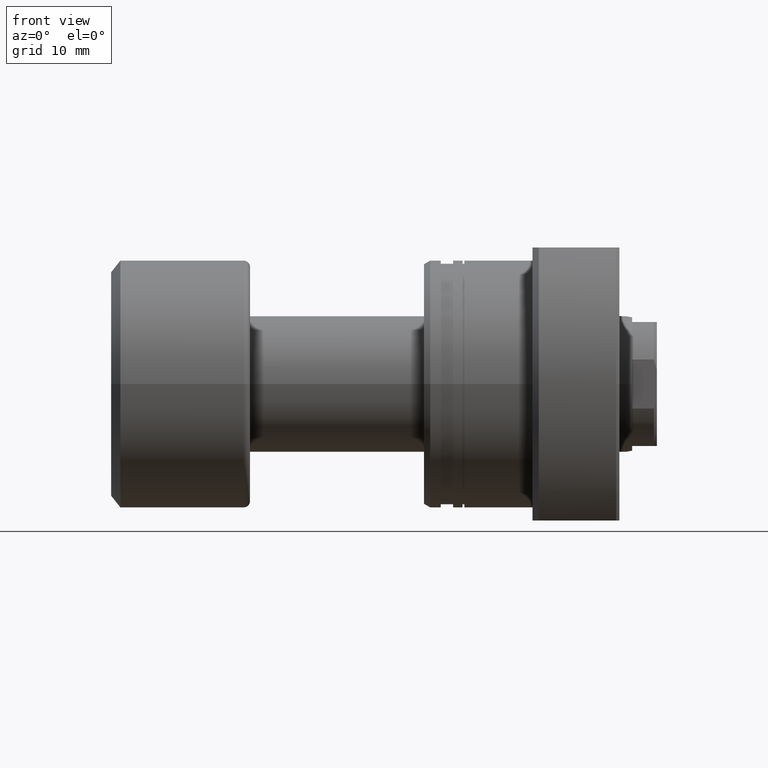
[diagram: clean part render]
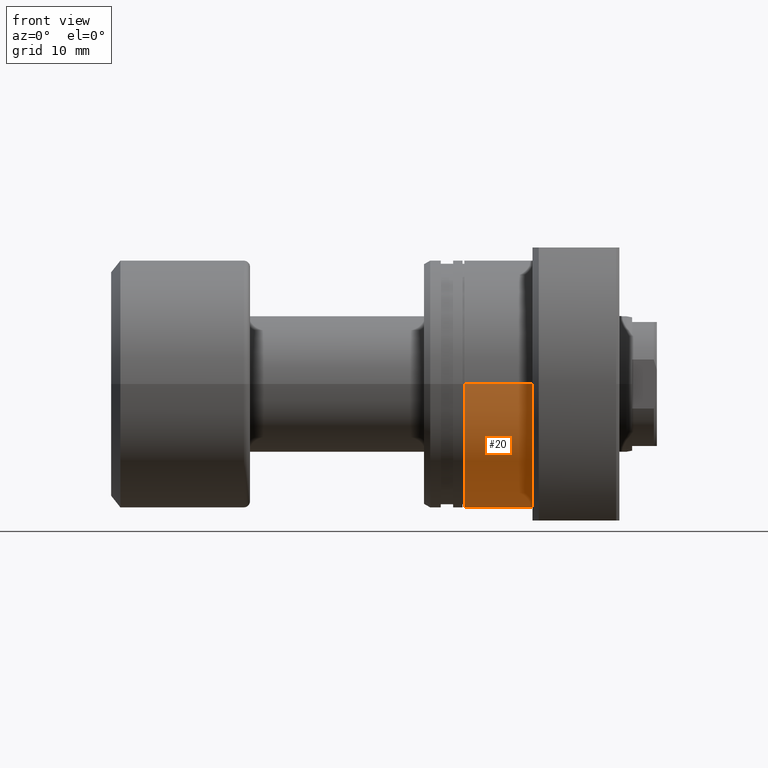
[diagram: same view with one face highlighted and labeled with its STEP entity id]
A machine part, front view. The second image highlights one B-rep face of the part: STEP entity #20.
In plain terms, the highlighted cylindrical surface (partial cylindrical patch) has radius 20 mm, axis along (1, 0, 0).
Its self-contained STEP definition (entity closure, byte-faithful):
#20 = ADVANCED_FACE ( 'NONE', ( #2564 ), #1829, .T. ) ;
#99 = AXIS2_PLACEMENT_3D ( 'NONE', #1679, #2829, #656 ) ;
#121 = CARTESIAN_POINT ( 'NONE',  ( 31.50000000000000000, -19.99999999999999645, 2.449293598294706119E-15 ) ) ;
#203 = CARTESIAN_POINT ( 'NONE',  ( 17.50000000000000000, 19.99999999999999645, 0.000000000000000000 ) ) ;
#301 = CARTESIAN_POINT ( 'NONE',  ( 31.50000000000000000, 19.99999999999999645, 0.000000000000000000 ) ) ;
#426 = VERTEX_POINT ( 'NONE', #3129 ) ;
#593 = DIRECTION ( 'NONE',  ( 1.000000000000000000, 2.721437331438560389E-17, -0.000000000000000000 ) ) ;
#656 = DIRECTION ( 'NONE',  ( 0.000000000000000000, 1.000000000000000000, 0.000000000000000000 ) ) ;
#658 = CARTESIAN_POINT ( 'NONE',  ( 6.499999999999783284, 1.768934265435005073E-16, 0.000000000000000000 ) ) ;
#760 = ORIENTED_EDGE ( 'NONE', *, *, #1958, .F. ) ;
#789 = CIRCLE ( 'NONE', #1720, 19.99999999999999645 ) ;
#867 = DIRECTION ( 'NONE',  ( 1.000000000000000000, 2.721437331438560389E-17, -0.000000000000000000 ) ) ;
#897 = CARTESIAN_POINT ( 'NONE',  ( 6.499999999999783284, 19.99999999999999645, 0.000000000000000000 ) ) ;
#1097 = CIRCLE ( 'NONE', #1459, 19.99999999999999645 ) ;
#1127 = CARTESIAN_POINT ( 'NONE',  ( 17.50000000000000000, 4.762515330017480942E-16, 0.000000000000000000 ) ) ;
#1292 = ORIENTED_EDGE ( 'NONE', *, *, #2082, .F. ) ;
#1299 = ORIENTED_EDGE ( 'NONE', *, *, #1380, .T. ) ;
#1370 = DIRECTION ( 'NONE',  ( 1.000000000000000000, 2.721437331438560389E-17, -0.000000000000000000 ) ) ;
#1380 = EDGE_CURVE ( 'NONE', #2989, #2469, #1097, .T. ) ;
#1410 = ORIENTED_EDGE ( 'NONE', *, *, #1851, .T. ) ;
#1422 = CARTESIAN_POINT ( 'NONE',  ( 6.499999999999784173, -19.99999999999999645, 2.449293598294706119E-15 ) ) ;
#1459 = AXIS2_PLACEMENT_3D ( 'NONE', #658, #593, #1575 ) ;
#1568 = DIRECTION ( 'NONE',  ( 0.000000000000000000, 1.000000000000000000, 0.000000000000000000 ) ) ;
#1575 = DIRECTION ( 'NONE',  ( -4.336808689942018352E-17, 1.000000000000000000, 0.000000000000000000 ) ) ;
#1594 = LINE ( 'NONE', #121, #2034 ) ;
#1679 = CARTESIAN_POINT ( 'NONE',  ( 31.50000000000000000, 8.572527594031465301E-16, 0.000000000000000000 ) ) ;
#1720 = AXIS2_PLACEMENT_3D ( 'NONE', #1127, #867, #1568 ) ;
#1751 = VERTEX_POINT ( 'NONE', #203 ) ;
#1829 = CYLINDRICAL_SURFACE ( 'NONE', #99, 19.99999999999999645 ) ;
#1851 = EDGE_CURVE ( 'NONE', #2469, #1751, #2759, .T. ) ;
#1958 = EDGE_CURVE ( 'NONE', #426, #1751, #789, .T. ) ;
#1993 = DIRECTION ( 'NONE',  ( 1.000000000000000000, 2.721437331438560389E-17, -0.000000000000000000 ) ) ;
#2034 = VECTOR ( 'NONE', #1370, 1000.000000000000000 ) ;
#2082 = EDGE_CURVE ( 'NONE', #2989, #426, #1594, .T. ) ;
#2469 = VERTEX_POINT ( 'NONE', #897 ) ;
#2564 = FACE_OUTER_BOUND ( 'NONE', #3019, .T. ) ;
#2759 = LINE ( 'NONE', #301, #3183 ) ;
#2829 = DIRECTION ( 'NONE',  ( 1.000000000000000000, 2.721437331438560389E-17, -0.000000000000000000 ) ) ;
#2989 = VERTEX_POINT ( 'NONE', #1422 ) ;
#3019 = EDGE_LOOP ( 'NONE', ( #1292, #1299, #1410, #760 ) ) ;
#3129 = CARTESIAN_POINT ( 'NONE',  ( 17.50000000000000000, -19.99999999999999645, 2.449293598294706119E-15 ) ) ;
#3183 = VECTOR ( 'NONE', #1993, 1000.000000000000000 ) ;